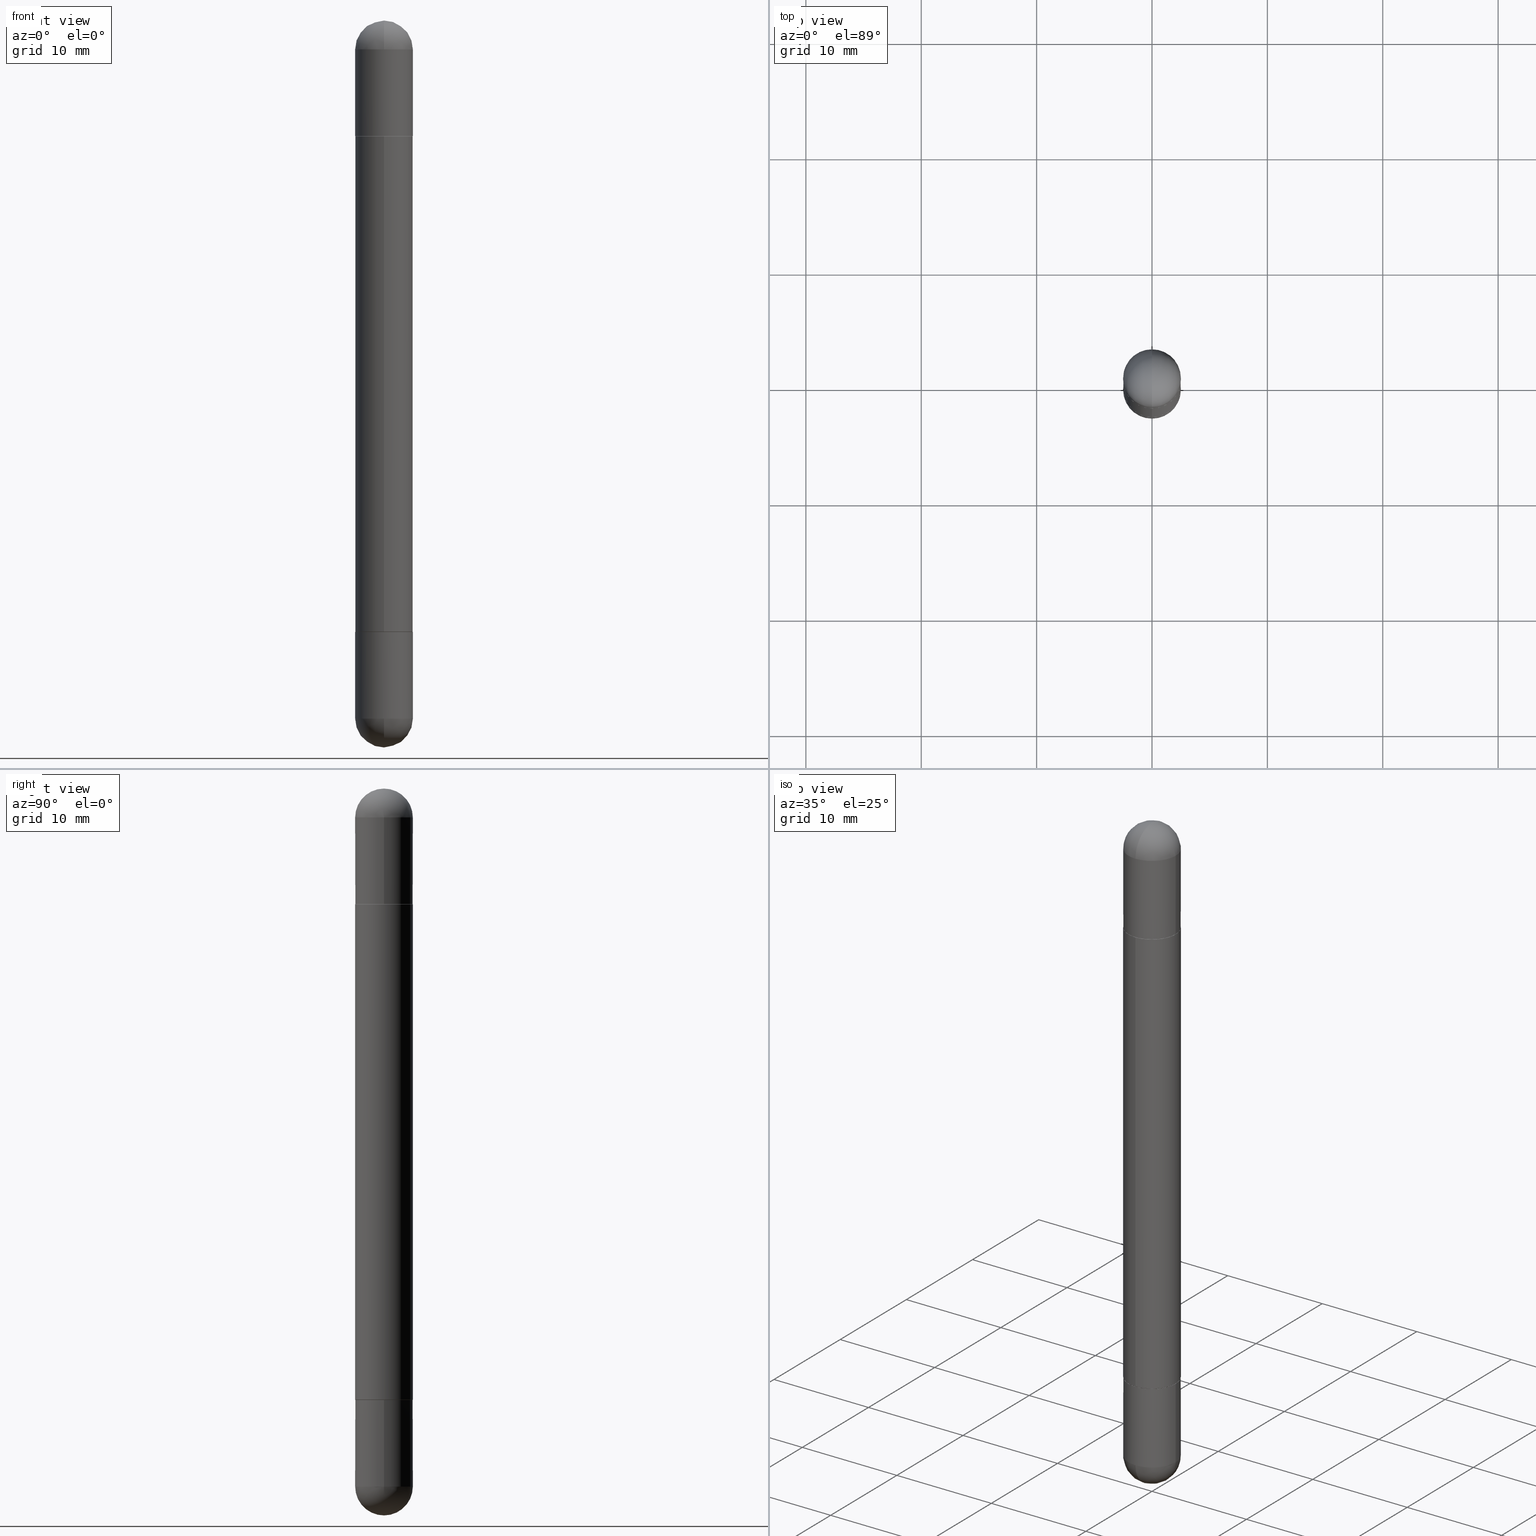
[diagram: canonical four-view strip — front | top / right | iso, engineering-drawing reading convention]
A machine part, canonical four-view strip (front | top / right | iso — engineering-drawing reading convention). The complete STEP part file that produces these views, byte-faithful:
ISO-10303-21;
HEADER;
FILE_DESCRIPTION (( 'STEP AP203' ),
    '1' );
FILE_NAME ('48976.STEP',
    '2024-03-01T12:48:17',
    ( '' ),
    ( '' ),
    'SwSTEP 2.0',
    'SolidWorks 2023',
    '' );
FILE_SCHEMA (( 'CONFIG_CONTROL_DESIGN' ));
ENDSEC;

DATA;
#1 = COORDINATED_UNIVERSAL_TIME_OFFSET ( 5, 0, .BEHIND. ) ;
#2 = VERTEX_POINT ( 'NONE', #238 ) ;
#3 = DIRECTION ( 'NONE',  ( -6.982962677686266711E-15, -1.000000000000000000, -3.504166230970065993E-15 ) ) ;
#4 = AXIS2_PLACEMENT_3D ( 'NONE', #340, #654, #462 ) ;
#5 = ORIENTED_EDGE ( 'NONE', *, *, #679, .F. ) ;
#6 = CIRCLE ( 'NONE', #464, 0.09744999999999999496 ) ;
#7 = AXIS2_PLACEMENT_3D ( 'NONE', #194, #136, #616 ) ;
#8 = ADVANCED_FACE ( 'NONE', ( #484 ), #189, .F. ) ;
#9 = APPROVAL_ROLE ( '' ) ;
#10 = EDGE_LOOP ( 'NONE', ( #688, #620, #334, #36 ) ) ;
#11 = CARTESIAN_POINT ( 'NONE',  ( -6.874726756181635521E-16, -0.09845000000000754536, -0.3947000000000003839 ) ) ;
#12 = APPROVAL_STATUS ( 'not_yet_approved' ) ;
#13 = APPROVAL ( #12, 'UNSPECIFIED' ) ;
#14 = LINE ( 'NONE', #29, #568 ) ;
#15 = EDGE_LOOP ( 'NONE', ( #103, #213 ) ) ;
#16 = CARTESIAN_POINT ( 'NONE',  ( 5.824739876012068780E-29, -8.316184826923546689E-15, -2.381850000000000467 ) ) ;
#17 = CALENDAR_DATE ( 2024, 1, 3 ) ;
#18 = AXIS2_PLACEMENT_3D ( 'NONE', #71, #106, #781 ) ;
#19 = VECTOR ( 'NONE', #160, 39.37007874015748143 ) ;
#20 = ORIENTED_EDGE ( 'NONE', *, *, #224, .F. ) ;
#21 = AXIS2_PLACEMENT_3D ( 'NONE', #577, #496, #346 ) ;
#22 = LOCAL_TIME ( 7, 48, 17.00000000000000000, #263 ) ;
#23 = FACE_OUTER_BOUND ( 'NONE', #15, .T. ) ;
#24 = CARTESIAN_POINT ( 'NONE',  ( -0.09844999999999999585, -7.101225570921008942E-15, -2.086600000000000232 ) ) ;
#25 = VERTEX_POINT ( 'NONE', #425 ) ;
#26 = EDGE_CURVE ( 'NONE', #492, #576, #371, .T. ) ;
#27 = DIRECTION ( 'NONE',  ( -2.445468806185136597E-29, 3.491481338843145583E-15, -1.000000000000000000 ) ) ;
#28 = ORIENTED_EDGE ( 'NONE', *, *, #67, .T. ) ;
#29 = CARTESIAN_POINT ( 'NONE',  ( -0.09845000000000000973, 6.754160278806074041E-16, -2.480300000000000171 ) ) ;
#30 = DIRECTION ( 'NONE',  ( -2.445773315156716163E-29, 3.491045264664268947E-15, 1.000000000000000000 ) ) ;
#31 = AXIS2_PLACEMENT_3D ( 'NONE', #707, #215, #168 ) ;
#32 = DIRECTION ( 'NONE',  ( 1.000000000000000000, -6.982962677686273810E-15, 0.000000000000000000 ) ) ;
#33 = AXIS2_PLACEMENT_3D ( 'NONE', #298, #801, #35 ) ;
#34 = ADVANCED_FACE ( 'NONE', ( #126 ), #347, .T. ) ;
#35 = DIRECTION ( 'NONE',  ( -1.000000000000000000, 6.982962677686265922E-15, 4.876176775795935793E-29 ) ) ;
#36 = ORIENTED_EDGE ( 'NONE', *, *, #662, .F. ) ;
#37 = CARTESIAN_POINT ( 'NONE',  ( -0.09845000000000000973, -7.125338866396221621E-15, -0.09844999999999987095 ) ) ;
#38 = ADVANCED_FACE ( 'NONE', ( #228 ), #729, .T. ) ;
#39 = CARTESIAN_POINT ( 'NONE',  ( -6.804897129404755657E-16, -0.09745000000000728080, -2.086600000000000232 ) ) ;
#40 = CARTESIAN_POINT ( 'NONE',  ( 3.033125776791602118E-29, -4.329419784973394178E-15, -1.240150000000000086 ) ) ;
#41 = DIRECTION ( 'NONE',  ( -2.445773315156716163E-29, 3.491045264664269341E-15, -1.000000000000000000 ) ) ;
#42 = EDGE_CURVE ( 'NONE', #630, #808, #603, .T. ) ;
#43 = ORIENTED_EDGE ( 'NONE', *, *, #223, .T. ) ;
#44 = DIRECTION ( 'NONE',  ( 2.445468806185136597E-29, -3.491481338843145583E-15, 1.000000000000000000 ) ) ;
#45 = DIRECTION ( 'NONE',  ( -2.445773315156716163E-29, 3.491045264664269341E-15, -1.000000000000000000 ) ) ;
#46 = ORIENTED_EDGE ( 'NONE', *, *, #254, .F. ) ;
#47 = CARTESIAN_POINT ( 'NONE',  ( 5.102715210985907397E-29, -7.285324961630108994E-15, -0.3936999999999999389 ) ) ;
#48 = CIRCLE ( 'NONE', #715, 0.09844999999999999585 ) ;
#49 = ORIENTED_EDGE ( 'NONE', *, *, #134, .F. ) ;
#50 = DIRECTION ( 'NONE',  ( -6.982962677686265922E-15, -1.000000000000000000, -3.468572871589965081E-15 ) ) ;
#51 = DIRECTION ( 'NONE',  ( -2.445773315156716163E-29, 3.491045264664269341E-15, 1.000000000000000000 ) ) ;
#52 = ORIENTED_EDGE ( 'NONE', *, *, #628, .T. ) ;
#53 = EDGE_CURVE ( 'NONE', #264, #808, #276, .T. ) ;
#54 = DIRECTION ( 'NONE',  ( -6.982962677686266711E-15, -1.000000000000000000, -3.504166230970065993E-15 ) ) ;
#55 = DIRECTION ( 'NONE',  ( 4.851104656541418659E-15, 0.7071067811866162955, -0.7071067811864787389 ) ) ;
#56 = FACE_OUTER_BOUND ( 'NONE', #191, .T. ) ;
#57 = DIRECTION ( 'NONE',  ( -2.445773315156716163E-29, 3.491045264664268947E-15, -1.000000000000000000 ) ) ;
#58 = CARTESIAN_POINT ( 'NONE',  ( 5.493620098098182533E-29, -8.790367195063598563E-15, -2.381850000000000467 ) ) ;
#59 = CARTESIAN_POINT ( 'NONE',  ( 5.738586058125595532E-29, -9.128075209003904434E-15, -2.480300000000001059 ) ) ;
#60 = CARTESIAN_POINT ( 'NONE',  ( 5.103350599406005288E-29, -7.284415049248465084E-15, -0.3936999999999999389 ) ) ;
#61 = CARTESIAN_POINT ( 'NONE',  ( 0.09844999999999999585, -7.972797637248321554E-15, -2.086600000000000232 ) ) ;
#62 = AXIS2_PLACEMENT_3D ( 'NONE', #548, #240, #732 ) ;
#63 = AXIS2_PLACEMENT_3D ( 'NONE', #432, #302, #741 ) ;
#64 = CARTESIAN_POINT ( 'NONE',  ( 5.493620098098182533E-29, -8.790367195063598563E-15, -0.09844999999999987095 ) ) ;
#65 = EDGE_LOOP ( 'NONE', ( #239, #758 ) ) ;
#66 = SECURITY_CLASSIFICATION ( '', '', #769 ) ;
#67 = EDGE_CURVE ( 'NONE', #97, #2, #770, .T. ) ;
#68 = ORIENTED_EDGE ( 'NONE', *, *, #164, .T. ) ;
#69 = DIRECTION ( 'NONE',  ( -2.445468806185136877E-29, 3.491481338843145188E-15, 1.000000000000000000 ) ) ;
#70 = ORIENTED_EDGE ( 'NONE', *, *, #251, .F. ) ;
#71 = CARTESIAN_POINT ( 'NONE',  ( 5.824739876012068780E-29, -8.316184826923546689E-15, -2.381850000000000467 ) ) ;
#72 = EDGE_LOOP ( 'NONE', ( #229, #318, #52, #167 ) ) ;
#73 = FACE_OUTER_BOUND ( 'NONE', #313, .T. ) ;
#74 = EDGE_CURVE ( 'NONE', #494, #322, #173, .T. ) ;
#75 = AXIS2_PLACEMENT_3D ( 'NONE', #512, #771, #518 ) ;
#76 = APPROVAL_ROLE ( '' ) ;
#77 = VERTEX_POINT ( 'NONE', #536 ) ;
#78 = AXIS2_PLACEMENT_3D ( 'NONE', #803, #118, #50 ) ;
#79 = EDGE_LOOP ( 'NONE', ( #687, #436 ) ) ;
#80 = ADVANCED_FACE ( 'NONE', ( #470 ), #724, .T. ) ;
#81 = PERSON_AND_ORGANIZATION ( #752, #600 ) ;
#82 = ADVANCED_FACE ( 'NONE', ( #476 ), #417, .T. ) ;
#83 = ORIENTED_EDGE ( 'NONE', *, *, #445, .T. ) ;
#84 = DIRECTION ( 'NONE',  ( 6.860497997771531562E-15, 1.000000000000000000, 0.000000000000000000 ) ) ;
#85 = PERSON_AND_ORGANIZATION_ROLE ( 'classification_officer' ) ;
#86 = LINE ( 'NONE', #390, #814 ) ;
#87 = VERTEX_POINT ( 'NONE', #324 ) ;
#88 = ADVANCED_FACE ( 'NONE', ( #73 ), #200, .T. ) ;
#89 = PERSON_AND_ORGANIZATION_ROLE ( 'design_owner' ) ;
#90 = CARTESIAN_POINT ( 'NONE',  ( 5.493620098098182533E-29, -8.790367195063598563E-15, -2.381850000000000467 ) ) ;
#91 = AXIS2_PLACEMENT_3D ( 'NONE', #314, #424, #681 ) ;
#92 = ORIENTED_EDGE ( 'NONE', *, *, #268, .T. ) ;
#93 = AXIS2_PLACEMENT_3D ( 'NONE', #304, #549, #187 ) ;
#94 = CYLINDRICAL_SURFACE ( 'NONE', #152, 0.09845000000000000973 ) ;
#95 = ORIENTED_EDGE ( 'NONE', *, *, #636, .F. ) ;
#96 = DIMENSIONAL_EXPONENTS ( 1.000000000000000000, 0.000000000000000000, 0.000000000000000000, 0.000000000000000000, 0.000000000000000000, 0.000000000000000000, 0.000000000000000000 ) ;
#97 = VERTEX_POINT ( 'NONE', #505 ) ;
#98 = EDGE_CURVE ( 'NONE', #322, #574, #733, .T. ) ;
#99 = DIRECTION ( 'NONE',  ( 1.000000000000000000, -6.982962677686266711E-15, 0.000000000000000000 ) ) ;
#100 = EDGE_CURVE ( 'NONE', #328, #748, #454, .T. ) ;
#101 = CARTESIAN_POINT ( 'NONE',  ( 6.754160278806080944E-16, 0.09845000000000013463, -2.480299999999999727 ) ) ;
#102 = CARTESIAN_POINT ( 'NONE',  ( 0.09844999999999999585, -7.972797637248321554E-15, -0.3936999999999999389 ) ) ;
#103 = ORIENTED_EDGE ( 'NONE', *, *, #268, .F. ) ;
#104 = AXIS2_PLACEMENT_3D ( 'NONE', #90, #587, #219 ) ;
#105 = CIRCLE ( 'NONE', #610, 0.09845000000000000973 ) ;
#106 = DIRECTION ( 'NONE',  ( -2.445468806185136597E-29, 3.491481338843145583E-15, 1.000000000000000000 ) ) ;
#107 = AXIS2_PLACEMENT_3D ( 'NONE', #146, #443, #278 ) ;
#108 = FACE_OUTER_BOUND ( 'NONE', #10, .T. ) ;
#109 = ORIENTED_EDGE ( 'NONE', *, *, #406, .T. ) ;
#110 = APPLICATION_CONTEXT ( 'configuration controlled 3d designs of mechanical parts and assemblies' ) ;
#111 = EDGE_LOOP ( 'NONE', ( #792, #601, #565, #46, #294 ) ) ;
#112 = DIRECTION ( 'NONE',  ( -2.445468806185136877E-29, 3.491481338843145188E-15, -1.000000000000000000 ) ) ;
#113 = CARTESIAN_POINT ( 'NONE',  ( 5.103350599406005288E-29, -7.284415049248465084E-15, -2.086600000000000232 ) ) ;
#114 = VERTEX_POINT ( 'NONE', #275 ) ;
#115 = ORIENTED_EDGE ( 'NONE', *, *, #720, .T. ) ;
#116 = DIRECTION ( 'NONE',  ( -2.445468806185136877E-29, 3.491481338843145188E-15, 1.000000000000000000 ) ) ;
#117 = APPROVAL ( #579, 'UNSPECIFIED' ) ;
#118 = DIRECTION ( 'NONE',  ( 2.445773315156716163E-29, -3.491045264664269341E-15, 1.000000000000000000 ) ) ;
#119 = CYLINDRICAL_SURFACE ( 'NONE', #122, 0.09845000000000000973 ) ;
#120 = CIRCLE ( 'NONE', #31, 0.09844999999999999585 ) ;
#121 = CIRCLE ( 'NONE', #787, 0.09844999999999999585 ) ;
#122 = AXIS2_PLACEMENT_3D ( 'NONE', #375, #379, #622 ) ;
#123 = CARTESIAN_POINT ( 'NONE',  ( 5.824739876012068780E-29, -8.316184826923546689E-15, -0.09844999999999987095 ) ) ;
#124 = LOCAL_TIME ( 7, 48, 17.00000000000000000, #582 ) ;
#125 = DIRECTION ( 'NONE',  ( -2.445773315156716163E-29, 3.491045264664269341E-15, -1.000000000000000000 ) ) ;
#126 = FACE_OUTER_BOUND ( 'NONE', #358, .T. ) ;
#127 = DIRECTION ( 'NONE',  ( 1.000000000000000000, -6.982962677686266711E-15, 0.000000000000000000 ) ) ;
#128 = DIRECTION ( 'NONE',  ( 2.445773315156716163E-29, -3.491045264664269341E-15, 1.000000000000000000 ) ) ;
#129 = CARTESIAN_POINT ( 'NONE',  ( 5.824739876012068780E-29, -8.316184826923546689E-15, -2.381850000000000467 ) ) ;
#130 = EDGE_LOOP ( 'NONE', ( #653, #802, #754, #558 ) ) ;
#131 = CARTESIAN_POINT ( 'NONE',  ( -6.995293233557624958E-16, -0.09845000000000865559, -2.381850000000000023 ) ) ;
#132 = EDGE_LOOP ( 'NONE', ( #726, #197, #281, #68 ) ) ;
#133 = DIRECTION ( 'NONE',  ( 2.445468806185136597E-29, -3.491481338843145583E-15, 1.000000000000000000 ) ) ;
#134 = EDGE_CURVE ( 'NONE', #25, #139, #262, .T. ) ;
#135 = ADVANCED_FACE ( 'NONE', ( #591 ), #698, .F. ) ;
#136 = DIRECTION ( 'NONE',  ( -1.000000000000000000, 6.982962677686265922E-15, 4.883557194083112340E-29 ) ) ;
#137 = EDGE_LOOP ( 'NONE', ( #354, #349, #528, #339, #738 ) ) ;
#138 = EDGE_CURVE ( 'NONE', #25, #320, #763, .T. ) ;
#139 = VERTEX_POINT ( 'NONE', #11 ) ;
#140 = AXIS2_PLACEMENT_3D ( 'NONE', #270, #511, #755 ) ;
#141 = PRODUCT_DEFINITION ( 'UNKNOWN', '', #212, #461 ) ;
#142 = AXIS2_PLACEMENT_3D ( 'NONE', #58, #188, #805 ) ;
#143 =( LENGTH_UNIT ( ) NAMED_UNIT ( * ) SI_UNIT ( $, .METRE. ) );
#144 = FACE_OUTER_BOUND ( 'NONE', #137, .T. ) ;
#145 = ORIENTED_EDGE ( 'NONE', *, *, #100, .F. ) ;
#146 = CARTESIAN_POINT ( 'NONE',  ( 0.000000000000000000, 0.000000000000000000, 0.000000000000000000 ) ) ;
#147 = EDGE_LOOP ( 'NONE', ( #513, #222, #474, #246, #790 ) ) ;
#148 = ADVANCED_FACE ( 'NONE', ( #516 ), #595, .T. ) ;
#149 = DIRECTION ( 'NONE',  ( 2.445773315156716163E-29, -3.491045264664269341E-15, 1.000000000000000000 ) ) ;
#150 = CARTESIAN_POINT ( 'NONE',  ( 5.103350599406005288E-29, -7.284415049248465084E-15, -0.3936999999999999389 ) ) ;
#151 = AXIS2_PLACEMENT_3D ( 'NONE', #661, #30, #617 ) ;
#152 = AXIS2_PLACEMENT_3D ( 'NONE', #217, #718, #658 ) ;
#153 = PERSON_AND_ORGANIZATION ( #752, #600 ) ;
#154 = CIRCLE ( 'NONE', #315, 0.09845000000000024565 ) ;
#155 = CC_DESIGN_APPROVAL ( #13, ( #212 ) ) ;
#156 = ORIENTED_EDGE ( 'NONE', *, *, #428, .T. ) ;
#157 = PERSON_AND_ORGANIZATION ( #752, #600 ) ;
#158 = PERSON_AND_ORGANIZATION ( #752, #600 ) ;
#159 = FACE_OUTER_BOUND ( 'NONE', #405, .T. ) ;
#160 = DIRECTION ( 'NONE',  ( -2.445773315156716163E-29, 3.491045264664268947E-15, -1.000000000000000000 ) ) ;
#161 = AXIS2_PLACEMENT_3D ( 'NONE', #40, #807, #745 ) ;
#162 = ORIENTED_EDGE ( 'NONE', *, *, #274, .T. ) ;
#163 = CONICAL_SURFACE ( 'NONE', #261, 0.09744999999999999496, 0.7853981633975420928 ) ;
#164 = EDGE_CURVE ( 'NONE', #486, #97, #556, .T. ) ;
#165 = PLANE ( 'NONE',  #690 ) ;
#166 = DIRECTION ( 'NONE',  ( -1.000000000000000000, 6.982962677686265922E-15, 4.876176775795935793E-29 ) ) ;
#167 = ORIENTED_EDGE ( 'NONE', *, *, #657, .T. ) ;
#168 = DIRECTION ( 'NONE',  ( 1.000000000000000000, -6.982962677686265922E-15, 0.000000000000000000 ) ) ;
#169 = CC_DESIGN_PERSON_AND_ORGANIZATION_ASSIGNMENT ( #699, #633, ( #212 ) ) ;
#170 = CARTESIAN_POINT ( 'NONE',  ( 5.738586058125595532E-29, -9.128075209003904434E-15, 3.073328992872296367E-16 ) ) ;
#171 = FACE_OUTER_BOUND ( 'NONE', #593, .T. ) ;
#172 = ORIENTED_EDGE ( 'NONE', *, *, #134, .T. ) ;
#173 = CIRCLE ( 'NONE', #18, 0.09845000000000000973 ) ;
#174 = CARTESIAN_POINT ( 'NONE',  ( -6.874726756181635521E-16, -0.09845000000000754536, -0.3947000000000003839 ) ) ;
#175 = VECTOR ( 'NONE', #423, 39.37007874015748143 ) ;
#176 = CARTESIAN_POINT ( 'NONE',  ( 0.000000000000000000, 0.000000000000000000, -2.480300000000000171 ) ) ;
#177 = DIRECTION ( 'NONE',  ( 1.000000000000000000, -6.982962677686273810E-15, 0.000000000000000000 ) ) ;
#178 = CIRCLE ( 'NONE', #301, 0.09744999999999999496 ) ;
#179 = CARTESIAN_POINT ( 'NONE',  ( 5.824739876012068780E-29, -8.316184826923546689E-15, -0.09844999999999987095 ) ) ;
#180 = EDGE_CURVE ( 'NONE', #77, #492, #391, .T. ) ;
#181 = ORIENTED_EDGE ( 'NONE', *, *, #499, .F. ) ;
#182 = DIRECTION ( 'NONE',  ( -6.982962677686265922E-15, -1.000000000000000000, -3.491045264664268947E-15 ) ) ;
#183 = EDGE_CURVE ( 'NONE', #413, #299, #14, .T. ) ;
#184 = DIRECTION ( 'NONE',  ( -6.982962677686265922E-15, -1.000000000000000000, -3.468572871589965081E-15 ) ) ;
#185 = EDGE_LOOP ( 'NONE', ( #204, #664 ) ) ;
#186 = FACE_OUTER_BOUND ( 'NONE', #111, .T. ) ;
#187 = DIRECTION ( 'NONE',  ( -1.000000000000000000, 0.000000000000000000, 0.000000000000000000 ) ) ;
#188 = DIRECTION ( 'NONE',  ( -1.000000000000000000, 6.982962677686265922E-15, -4.883557194083112901E-29 ) ) ;
#189 = PLANE ( 'NONE',  #151 ) ;
#190 = CIRCLE ( 'NONE', #540, 0.09844999999999999585 ) ;
#191 = EDGE_LOOP ( 'NONE', ( #611, #162, #583, #156, #376 ) ) ;
#192 = DIRECTION ( 'NONE',  ( 1.000000000000000000, -6.982962677686273810E-15, 0.000000000000000000 ) ) ;
#193 = CARTESIAN_POINT ( 'NONE',  ( 6.719857788817732685E-16, 0.09744999999999269524, -0.3936999999999996058 ) ) ;
#194 = CARTESIAN_POINT ( 'NONE',  ( 5.493620098098182533E-29, -8.790367195063598563E-15, -0.09844999999999987095 ) ) ;
#195 = ORIENTED_EDGE ( 'NONE', *, *, #180, .T. ) ;
#196 = CARTESIAN_POINT ( 'NONE',  ( -6.874726756181636507E-16, -0.09845000000000751761, -2.085599999999999898 ) ) ;
#197 = ORIENTED_EDGE ( 'NONE', *, *, #532, .T. ) ;
#198 = CARTESIAN_POINT ( 'NONE',  ( 5.738586058125595532E-29, -9.128075209003904434E-15, 3.073328992872296367E-16 ) ) ;
#199 = CLOSED_SHELL ( 'NONE', ( #507, #386, #618, #135, #88, #410 ) ) ;
#200 = CONICAL_SURFACE ( 'NONE', #667, 0.09744999999999999496, 0.7853981633975420928 ) ;
#201 = AXIS2_PLACEMENT_3D ( 'NONE', #297, #45, #673 ) ;
#202 = APPROVAL_DATE_TIME ( #762, #475 ) ;
#203 = ORIENTED_EDGE ( 'NONE', *, *, #53, .T. ) ;
#204 = ORIENTED_EDGE ( 'NONE', *, *, #138, .T. ) ;
#205 = CARTESIAN_POINT ( 'NONE',  ( 6.754160278806600606E-16, 0.09844999999999295981, -0.3946999999999996622 ) ) ;
#206 = PERSON_AND_ORGANIZATION ( #752, #600 ) ;
#207 = ADVANCED_FACE ( 'NONE', ( #271 ), #338, .T. ) ;
#208 = DIRECTION ( 'NONE',  ( -2.445773315156716163E-29, 3.491045264664268947E-15, -1.000000000000000000 ) ) ;
#209 = ORIENTED_EDGE ( 'NONE', *, *, #737, .T. ) ;
#210 = ORIENTED_EDGE ( 'NONE', *, *, #753, .T. ) ;
#211 = AXIS2_PLACEMENT_3D ( 'NONE', #676, #307, #739 ) ;
#212 = PRODUCT_DEFINITION_FORMATION_WITH_SPECIFIED_SOURCE ( 'ANY', '', #561, .NOT_KNOWN. ) ;
#213 = ORIENTED_EDGE ( 'NONE', *, *, #296, .F. ) ;
#214 = CALENDAR_DATE ( 2024, 1, 3 ) ;
#215 = DIRECTION ( 'NONE',  ( -2.445468806185136597E-29, 3.491481338843145583E-15, 1.000000000000000000 ) ) ;
#216 = CARTESIAN_POINT ( 'NONE',  ( 5.493620098098182533E-29, -8.790367195063598563E-15, -0.09844999999999987095 ) ) ;
#217 = CARTESIAN_POINT ( 'NONE',  ( 0.000000000000000000, 0.000000000000000000, -2.480300000000000171 ) ) ;
#218 = ADVANCED_FACE ( 'NONE', ( #159 ), #652, .T. ) ;
#219 = DIRECTION ( 'NONE',  ( 6.982962677686265922E-15, 1.000000000000000000, -2.774858297271973643E-15 ) ) ;
#220 = VERTEX_POINT ( 'NONE', #24 ) ;
#221 = AXIS2_PLACEMENT_3D ( 'NONE', #520, #149, #3 ) ;
#222 = ORIENTED_EDGE ( 'NONE', *, *, #635, .T. ) ;
#223 = EDGE_CURVE ( 'NONE', #576, #264, #460, .T. ) ;
#224 = EDGE_CURVE ( 'NONE', #139, #440, #585, .T. ) ;
#225 = ORIENTED_EDGE ( 'NONE', *, *, #53, .F. ) ;
#226 = MANIFOLD_SOLID_BREP ( 'Combine1', #312 ) ;
#227 = DIRECTION ( 'NONE',  ( 2.445468806185136597E-29, -3.491481338843145583E-15, 1.000000000000000000 ) ) ;
#228 = FACE_OUTER_BOUND ( 'NONE', #147, .T. ) ;
#229 = ORIENTED_EDGE ( 'NONE', *, *, #753, .F. ) ;
#230 = CARTESIAN_POINT ( 'NONE',  ( 6.754160278806588773E-16, 0.09844999999999579088, -1.240150000000000086 ) ) ;
#231 = DIRECTION ( 'NONE',  ( 6.982962677686265922E-15, 1.000000000000000000, 3.468572871589967054E-15 ) ) ;
#232 = ORIENTED_EDGE ( 'NONE', *, *, #672, .F. ) ;
#233 = DIRECTION ( 'NONE',  ( 1.000000000000000000, -6.982962677686273810E-15, 0.000000000000000000 ) ) ;
#234 = CARTESIAN_POINT ( 'NONE',  ( 5.103350599406005288E-29, -7.284415049248465084E-15, -0.3936999999999999389 ) ) ;
#235 = EDGE_LOOP ( 'NONE', ( #70, #20, #533, #785 ) ) ;
#236 = DIRECTION ( 'NONE',  ( 1.000000000000000000, -6.982962677686273810E-15, 0.000000000000000000 ) ) ;
#237 = DIRECTION ( 'NONE',  ( 2.445468806185136597E-29, -3.491481338843145583E-15, 1.000000000000000000 ) ) ;
#238 = CARTESIAN_POINT ( 'NONE',  ( -0.09845000000000000973, -7.125338866396221621E-15, -0.09844999999999987095 ) ) ;
#239 = ORIENTED_EDGE ( 'NONE', *, *, #360, .T. ) ;
#240 = DIRECTION ( 'NONE',  ( -2.445468806185136597E-29, 3.491481338843145583E-15, 1.000000000000000000 ) ) ;
#241 = ADVANCED_FACE ( 'NONE', ( #284 ), #94, .T. ) ;
#242 = DIRECTION ( 'NONE',  ( 2.445468806185136597E-29, -3.491481338843145583E-15, 1.000000000000000000 ) ) ;
#243 = CARTESIAN_POINT ( 'NONE',  ( 5.824739876012068780E-29, -8.316184826923546689E-15, -0.09844999999999987095 ) ) ;
#244 = AXIS2_PLACEMENT_3D ( 'NONE', #414, #291, #743 ) ;
#245 = ADVANCED_FACE ( 'NONE', ( #783 ), #165, .F. ) ;
#246 = ORIENTED_EDGE ( 'NONE', *, *, #522, .F. ) ;
#247 = PLANE ( 'NONE',  #260 ) ;
#248 = AXIS2_PLACEMENT_3D ( 'NONE', #350, #597, #32 ) ;
#249 = DIRECTION ( 'NONE',  ( -2.445773315156716163E-29, 3.491045264664269341E-15, 1.000000000000000000 ) ) ;
#250 = ORIENTED_EDGE ( 'NONE', *, *, #223, .F. ) ;
#251 = EDGE_CURVE ( 'NONE', #440, #361, #407, .T. ) ;
#252 = ORIENTED_EDGE ( 'NONE', *, *, #98, .F. ) ;
#253 = DIRECTION ( 'NONE',  ( 1.000000000000000000, -6.982962677686265922E-15, -4.883557194083112901E-29 ) ) ;
#254 = EDGE_CURVE ( 'NONE', #795, #670, #256, .T. ) ;
#255 = APPROVAL_DATE_TIME ( #395, #117 ) ;
#256 = LINE ( 'NONE', #265, #524 ) ;
#257 = ORIENTED_EDGE ( 'NONE', *, *, #709, .T. ) ;
#258 = DIRECTION ( 'NONE',  ( -0.000000000000000000, -0.000000000000000000, -1.000000000000000000 ) ) ;
#259 = DIRECTION ( 'NONE',  ( -2.445773315156716163E-29, 3.491045264664269341E-15, -1.000000000000000000 ) ) ;
#260 = AXIS2_PLACEMENT_3D ( 'NONE', #234, #57, #182 ) ;
#261 = AXIS2_PLACEMENT_3D ( 'NONE', #370, #125, #54 ) ;
#262 = LINE ( 'NONE', #450, #300 ) ;
#263 = COORDINATED_UNIVERSAL_TIME_OFFSET ( 5, 0, .BEHIND. ) ;
#264 = VERTEX_POINT ( 'NONE', #696 ) ;
#265 = CARTESIAN_POINT ( 'NONE',  ( 0.09845000000000000973, -6.874726756182130531E-16, -2.480300000000000171 ) ) ;
#266 = ADVANCED_BREP_SHAPE_REPRESENTATION ( '48976', ( #766, #491, #768, #780, #226, #107 ), #383 ) ;
#267 = ADVANCED_FACE ( 'NONE', ( #144 ), #337, .T. ) ;
#268 = EDGE_CURVE ( 'NONE', #670, #299, #489, .T. ) ;
#269 = DATE_AND_TIME ( #457, #124 ) ;
#270 = CARTESIAN_POINT ( 'NONE',  ( 5.102715210985907397E-29, -7.285324961630108994E-15, -0.3936999999999999389 ) ) ;
#271 = FACE_OUTER_BOUND ( 'NONE', #132, .T. ) ;
#272 = ORIENTED_EDGE ( 'NONE', *, *, #164, .F. ) ;
#273 = FACE_OUTER_BOUND ( 'NONE', #730, .T. ) ;
#274 = EDGE_CURVE ( 'NONE', #574, #675, #411, .T. ) ;
#275 = CARTESIAN_POINT ( 'NONE',  ( 6.959766096770698684E-16, 0.09744999999999269524, -2.086600000000000676 ) ) ;
#276 = CIRCLE ( 'NONE', #666, 0.09845000000000024565 ) ;
#277 = AXIS2_PLACEMENT_3D ( 'NONE', #396, #467, #348 ) ;
#278 = DIRECTION ( 'NONE',  ( 1.000000000000000000, 0.000000000000000000, 0.000000000000000000 ) ) ;
#279 = CIRCLE ( 'NONE', #599, 0.09845000000000013463 ) ;
#280 = DIRECTION ( 'NONE',  ( -2.445468806185136877E-29, 3.491481338843145188E-15, -1.000000000000000000 ) ) ;
#281 = ORIENTED_EDGE ( 'NONE', *, *, #545, .T. ) ;
#282 = EDGE_CURVE ( 'NONE', #472, #97, #439, .T. ) ;
#283 = CARTESIAN_POINT ( 'NONE',  ( 5.103350599406005288E-29, -7.284415049248465084E-15, -0.3936999999999999389 ) ) ;
#284 = FACE_OUTER_BOUND ( 'NONE', #400, .T. ) ;
#285 = UNCERTAINTY_MEASURE_WITH_UNIT (LENGTH_MEASURE( 1.000000000000000082E-05 ), #385, 'distance_accuracy_value', 'NONE');
#286 = CC_DESIGN_PERSON_AND_ORGANIZATION_ASSIGNMENT ( #81, #85, ( #66 ) ) ;
#287 = AXIS2_PLACEMENT_3D ( 'NONE', #531, #727, #177 ) ;
#288 = EDGE_LOOP ( 'NONE', ( #523, #378, #765, #252 ) ) ;
#289 = CARTESIAN_POINT ( 'NONE',  ( 0.09845000000000000973, -6.874726756182130531E-16, -2.480300000000000171 ) ) ;
#290 = ORIENTED_EDGE ( 'NONE', *, *, #589, .F. ) ;
#291 = DIRECTION ( 'NONE',  ( 1.000000000000000000, -6.982962677686265922E-15, 4.883557194083112340E-29 ) ) ;
#292 = DIRECTION ( 'NONE',  ( -4.937700262165011104E-15, -0.7071067811866114106, 0.7071067811864836239 ) ) ;
#293 = DIRECTION ( 'NONE',  ( -2.445468806185136877E-29, 3.491481338843145188E-15, -1.000000000000000000 ) ) ;
#294 = ORIENTED_EDGE ( 'NONE', *, *, #628, .F. ) ;
#295 = DIRECTION ( 'NONE',  ( -6.982962677686265922E-15, -1.000000000000000000, 2.774858297271972065E-15 ) ) ;
#296 = EDGE_CURVE ( 'NONE', #299, #670, #190, .T. ) ;
#297 = CARTESIAN_POINT ( 'NONE',  ( 5.103350599406005288E-29, -7.284415049248465084E-15, -0.3936999999999999389 ) ) ;
#298 = CARTESIAN_POINT ( 'NONE',  ( 6.874726756182639346E-16, 0.09844999999999271001, -0.3936999999999996613 ) ) ;
#299 = VERTEX_POINT ( 'NONE', #477 ) ;
#300 = VECTOR ( 'NONE', #508, 39.37007874015748143 ) ;
#301 = AXIS2_PLACEMENT_3D ( 'NONE', #631, #249, #564 ) ;
#302 = DIRECTION ( 'NONE',  ( 2.438088387897960049E-29, -3.491481338843145188E-15, -1.000000000000000000 ) ) ;
#303 = VERTEX_POINT ( 'NONE', #543 ) ;
#304 = CARTESIAN_POINT ( 'NONE',  ( 0.000000000000000000, 0.000000000000000000, -1.240150000000000086 ) ) ;
#305 = EDGE_CURVE ( 'NONE', #327, #220, #639, .T. ) ;
#306 = DIRECTION ( 'NONE',  ( 1.000000000000000000, -6.982962677686273810E-15, 0.000000000000000000 ) ) ;
#307 = DIRECTION ( 'NONE',  ( -1.000000000000000000, 6.982962677686265922E-15, 4.883557194083112340E-29 ) ) ;
#308 = LINE ( 'NONE', #550, #569 ) ;
#309 = PLANE ( 'NONE',  #93 ) ;
#310 = ADVANCED_FACE ( 'NONE', ( #485 ), #247, .F. ) ;
#311 = DIRECTION ( 'NONE',  ( 1.000000000000000000, -6.982962677686265922E-15, 0.000000000000000000 ) ) ;
#312 = CLOSED_SHELL ( 'NONE', ( #731, #148, #521, #310, #740, #82, #498, #8 ) ) ;
#313 = EDGE_LOOP ( 'NONE', ( #95, #779, #172, #387 ) ) ;
#314 = CARTESIAN_POINT ( 'NONE',  ( 5.824739876012068780E-29, -8.316184826923546689E-15, -2.381850000000000467 ) ) ;
#315 = AXIS2_PLACEMENT_3D ( 'NONE', #708, #341, #584 ) ;
#316 = LOCAL_TIME ( 7, 48, 17.00000000000000000, #1 ) ;
#317 = CARTESIAN_POINT ( 'NONE',  ( 0.09845000000000000973, -8.488227569895042768E-15, -0.09844999999999987095 ) ) ;
#318 = ORIENTED_EDGE ( 'NONE', *, *, #100, .T. ) ;
#319 = CARTESIAN_POINT ( 'NONE',  ( 0.09845000000000000973, -8.488227569895042768E-15, -0.09844999999999987095 ) ) ;
#320 = VERTEX_POINT ( 'NONE', #193 ) ;
#321 = DIRECTION ( 'NONE',  ( 6.982962677686265922E-15, 1.000000000000000000, 3.468572871589967054E-15 ) ) ;
#322 = VERTEX_POINT ( 'NONE', #431 ) ;
#323 = AXIS2_PLACEMENT_3D ( 'NONE', #392, #645, #84 ) ;
#324 = CARTESIAN_POINT ( 'NONE',  ( 6.874726756182700483E-16, 0.09844999999999154427, -0.09844999999999953788 ) ) ;
#325 = CIRCLE ( 'NONE', #429, 0.09845000000000000973 ) ;
#326 = COORDINATED_UNIVERSAL_TIME_OFFSET ( 5, 0, .BEHIND. ) ;
#327 = VERTEX_POINT ( 'NONE', #61 ) ;
#328 = VERTEX_POINT ( 'NONE', #170 ) ;
#329 = CARTESIAN_POINT ( 'NONE',  ( 3.033125776791602118E-29, -4.329419784973394178E-15, -1.240150000000000086 ) ) ;
#330 = EDGE_CURVE ( 'NONE', #675, #494, #403, .T. ) ;
#331 = DIRECTION ( 'NONE',  ( 2.445773315156716163E-29, -3.491045264664269341E-15, 1.000000000000000000 ) ) ;
#332 =( NAMED_UNIT ( * ) PLANE_ANGLE_UNIT ( ) SI_UNIT ( $, .RADIAN. ) );
#333 = CARTESIAN_POINT ( 'NONE',  ( 0.000000000000000000, 0.000000000000000000, 0.000000000000000000 ) ) ;
#334 = ORIENTED_EDGE ( 'NONE', *, *, #644, .T. ) ;
#335 = COORDINATED_UNIVERSAL_TIME_OFFSET ( 5, 0, .BEHIND. ) ;
#336 = PRODUCT_RELATED_PRODUCT_CATEGORY ( 'detail', '', ( #561 ) ) ;
#337 = CYLINDRICAL_SURFACE ( 'NONE', #772, 0.09845000000000000973 ) ;
#338 = SPHERICAL_SURFACE ( 'NONE', #75, 0.09845000000000017626 ) ;
#339 = ORIENTED_EDGE ( 'NONE', *, *, #428, .F. ) ;
#340 = CARTESIAN_POINT ( 'NONE',  ( 5.103350599406005288E-29, -7.284415049248465084E-15, -0.3936999999999999389 ) ) ;
#341 = DIRECTION ( 'NONE',  ( 2.445773315156716163E-29, -3.491045264664269341E-15, 1.000000000000000000 ) ) ;
#342 = AXIS2_PLACEMENT_3D ( 'NONE', #150, #331, #578 ) ;
#343 = PERSON_AND_ORGANIZATION ( #752, #600 ) ;
#344 = CIRCLE ( 'NONE', #627, 0.09845000000000017626 ) ;
#345 = ORIENTED_EDGE ( 'NONE', *, *, #644, .F. ) ;
#346 = DIRECTION ( 'NONE',  ( -6.982962677686265922E-15, -1.000000000000000000, 2.774858297271972065E-15 ) ) ;
#347 = CYLINDRICAL_SURFACE ( 'NONE', #553, 0.09845000000000000973 ) ;
#348 = DIRECTION ( 'NONE',  ( 1.000000000000000000, -6.982962677686273810E-15, 0.000000000000000000 ) ) ;
#349 = ORIENTED_EDGE ( 'NONE', *, *, #767, .T. ) ;
#350 = CARTESIAN_POINT ( 'NONE',  ( 5.824739876012068780E-29, -8.316184826923546689E-15, -0.09844999999999987095 ) ) ;
#351 = AXIS2_PLACEMENT_3D ( 'NONE', #648, #581, #719 ) ;
#352 = EDGE_CURVE ( 'NONE', #816, #449, #48, .T. ) ;
#353 = CONICAL_SURFACE ( 'NONE', #586, 0.09744999999999999496, 0.7853981633975420928 ) ;
#354 = ORIENTED_EDGE ( 'NONE', *, *, #98, .T. ) ;
#355 = DIRECTION ( 'NONE',  ( -2.445468806185136597E-29, 3.491481338843145583E-15, -1.000000000000000000 ) ) ;
#356 = CARTESIAN_POINT ( 'NONE',  ( 5.493620098098182533E-29, -8.790367195063598563E-15, -0.09844999999999987095 ) ) ;
#357 = DIRECTION ( 'NONE',  ( -2.445773315156716163E-29, 3.491045264664268947E-15, -1.000000000000000000 ) ) ;
#358 = EDGE_LOOP ( 'NONE', ( #680, #519, #272, #747, #115 ) ) ;
#359 = EDGE_CURVE ( 'NONE', #114, #264, #804, .T. ) ;
#360 = EDGE_CURVE ( 'NONE', #560, #361, #501, .T. ) ;
#361 = VERTEX_POINT ( 'NONE', #230 ) ;
#362 = LINE ( 'NONE', #427, #704 ) ;
#363 = CARTESIAN_POINT ( 'NONE',  ( -6.804897129404755657E-16, -0.09745000000000728080, -0.3937000000000002720 ) ) ;
#364 = ORIENTED_EDGE ( 'NONE', *, *, #254, .T. ) ;
#365 = ORIENTED_EDGE ( 'NONE', *, *, #737, .F. ) ;
#366 = AXIS2_PLACEMENT_3D ( 'NONE', #433, #723, #99 ) ;
#367 = FACE_OUTER_BOUND ( 'NONE', #806, .T. ) ;
#368 = VECTOR ( 'NONE', #373, 39.37007874015748143 ) ;
#369 = CARTESIAN_POINT ( 'NONE',  ( -6.804897129404755657E-16, -0.09745000000000728080, -2.086600000000000232 ) ) ;
#370 = CARTESIAN_POINT ( 'NONE',  ( 5.103350599406005288E-29, -7.284415049248465084E-15, -0.3936999999999999389 ) ) ;
#371 = LINE ( 'NONE', #685, #812 ) ;
#372 = ADVANCED_FACE ( 'NONE', ( #186 ), #552, .T. ) ;
#373 = DIRECTION ( 'NONE',  ( -2.445773315156716163E-29, 3.491045264664268947E-15, -1.000000000000000000 ) ) ;
#374 = ORIENTED_EDGE ( 'NONE', *, *, #589, .T. ) ;
#375 = CARTESIAN_POINT ( 'NONE',  ( 0.000000000000000000, 0.000000000000000000, 0.000000000000000000 ) ) ;
#376 = ORIENTED_EDGE ( 'NONE', *, *, #406, .F. ) ;
#377 = CARTESIAN_POINT ( 'NONE',  ( -6.754160278805513950E-16, -0.09845000000000865559, -0.09845000000000021789 ) ) ;
#378 = ORIENTED_EDGE ( 'NONE', *, *, #797, .T. ) ;
#379 = DIRECTION ( 'NONE',  ( -2.445468806185136597E-29, 3.491481338843145583E-15, 1.000000000000000000 ) ) ;
#380 = AXIS2_PLACEMENT_3D ( 'NONE', #777, #706, #660 ) ;
#381 = ORIENTED_EDGE ( 'NONE', *, *, #532, .F. ) ;
#382 = CIRCLE ( 'NONE', #221, 0.09744999999999999496 ) ;
#383 =( GEOMETRIC_REPRESENTATION_CONTEXT ( 3 ) GLOBAL_UNCERTAINTY_ASSIGNED_CONTEXT ( ( #285 ) ) GLOBAL_UNIT_ASSIGNED_CONTEXT ( ( #385, #332, #573 ) ) REPRESENTATION_CONTEXT ( 'NONE', 'WORKASPACE' ) );
#384 = FACE_OUTER_BOUND ( 'NONE', #495, .T. ) ;
#385 =( CONVERSION_BASED_UNIT ( 'INCH', #481 ) LENGTH_UNIT ( ) NAMED_UNIT ( #96 ) );
#386 = ADVANCED_FACE ( 'NONE', ( #273 ), #598, .T. ) ;
#387 = ORIENTED_EDGE ( 'NONE', *, *, #224, .T. ) ;
#388 = APPLICATION_PROTOCOL_DEFINITION ( 'international standard', 'config_control_design', 1994, #110 ) ;
#389 = EDGE_CURVE ( 'NONE', #320, #25, #6, .T. ) ;
#390 = CARTESIAN_POINT ( 'NONE',  ( -6.874726756182137434E-16, -0.09845000000000013463, -2.480300000000001059 ) ) ;
#391 = CIRCLE ( 'NONE', #351, 0.09744999999999999496 ) ;
#392 = CARTESIAN_POINT ( 'NONE',  ( 5.493620098098182533E-29, -8.790367195063598563E-15, -0.09844999999999987095 ) ) ;
#393 = AXIS2_PLACEMENT_3D ( 'NONE', #784, #721, #663 ) ;
#394 = CALENDAR_DATE ( 2024, 1, 3 ) ;
#395 = DATE_AND_TIME ( #214, #736 ) ;
#396 = CARTESIAN_POINT ( 'NONE',  ( 5.824739876012068780E-29, -8.316184826923546689E-15, -0.09844999999999987095 ) ) ;
#397 = EDGE_LOOP ( 'NONE', ( #250, #607, #580, #374 ) ) ;
#398 = DIRECTION ( 'NONE',  ( 4.851104656541418659E-15, 0.7071067811866162955, -0.7071067811864787389 ) ) ;
#399 = APPROVAL_STATUS ( 'not_yet_approved' ) ;
#400 = EDGE_LOOP ( 'NONE', ( #693, #605, #818, #364, #92 ) ) ;
#401 = DIRECTION ( 'NONE',  ( -2.445468806185136597E-29, 3.491481338843145583E-15, 1.000000000000000000 ) ) ;
#402 = AXIS2_PLACEMENT_3D ( 'NONE', #176, #355, #127 ) ;
#403 = CIRCLE ( 'NONE', #515, 0.09845000000000000973 ) ;
#404 = CIRCLE ( 'NONE', #78, 0.09845000000000024565 ) ;
#405 = EDGE_LOOP ( 'NONE', ( #458, #689, #542, #588 ) ) ;
#406 = EDGE_CURVE ( 'NONE', #220, #327, #120, .T. ) ;
#407 = LINE ( 'NONE', #101, #799 ) ;
#408 = ORIENTED_EDGE ( 'NONE', *, *, #594, .T. ) ;
#409 = CYLINDRICAL_SURFACE ( 'NONE', #786, 0.09845000000000013463 ) ;
#410 = ADVANCED_FACE ( 'NONE', ( #722 ), #409, .T. ) ;
#411 = CIRCLE ( 'NONE', #91, 0.09845000000000000973 ) ;
#412 = AXIS2_PLACEMENT_3D ( 'NONE', #430, #686, #184 ) ;
#413 = VERTEX_POINT ( 'NONE', #37 ) ;
#414 = CARTESIAN_POINT ( 'NONE',  ( 5.493620098098182533E-29, -8.790367195063598563E-15, -2.381850000000000467 ) ) ;
#415 = APPLICATION_CONTEXT ( 'configuration controlled 3d designs of mechanical parts and assemblies' ) ;
#416 = DIRECTION ( 'NONE',  ( -2.445773315156716163E-29, 3.491045264664269341E-15, 1.000000000000000000 ) ) ;
#417 = CYLINDRICAL_SURFACE ( 'NONE', #626, 0.09845000000000013463 ) ;
#418 = VERTEX_POINT ( 'NONE', #174 ) ;
#419 = LINE ( 'NONE', #363, #525 ) ;
#420 = ORIENTED_EDGE ( 'NONE', *, *, #42, .F. ) ;
#421 = CARTESIAN_POINT ( 'NONE',  ( 6.719857788817732685E-16, 0.09744999999999269524, -0.3936999999999996058 ) ) ;
#422 = EDGE_CURVE ( 'NONE', #434, #322, #682, .T. ) ;
#423 = DIRECTION ( 'NONE',  ( 5.024295867788533340E-15, 0.7071067811866162955, 0.7071067811864787389 ) ) ;
#424 = DIRECTION ( 'NONE',  ( -2.445468806185136597E-29, 3.491481338843145583E-15, 1.000000000000000000 ) ) ;
#425 = CARTESIAN_POINT ( 'NONE',  ( -6.804897129404755657E-16, -0.09745000000000728080, -0.3937000000000002720 ) ) ;
#426 = AXIS2_PLACEMENT_3D ( 'NONE', #448, #208, #642 ) ;
#427 = CARTESIAN_POINT ( 'NONE',  ( 0.09845000000000000973, -6.874726756182130531E-16, 4.800596035771099214E-30 ) ) ;
#428 = EDGE_CURVE ( 'NONE', #494, #327, #362, .T. ) ;
#429 = AXIS2_PLACEMENT_3D ( 'NONE', #243, #751, #192 ) ;
#430 = CARTESIAN_POINT ( 'NONE',  ( 5.100904826090848592E-29, -7.280924003983800483E-15, -0.3947000000000000508 ) ) ;
#431 = CARTESIAN_POINT ( 'NONE',  ( 6.874726756182700483E-16, 0.09844999999999154427, -2.381850000000000911 ) ) ;
#432 = CARTESIAN_POINT ( 'NONE',  ( 6.874726756182639346E-16, 0.09844999999999271001, -2.086600000000000676 ) ) ;
#433 = CARTESIAN_POINT ( 'NONE',  ( 0.000000000000000000, 0.000000000000000000, -2.480300000000000171 ) ) ;
#434 = VERTEX_POINT ( 'NONE', #59 ) ;
#435 = CARTESIAN_POINT ( 'NONE',  ( -0.09844999999999999585, -7.125338866396220043E-15, -0.3936999999999999389 ) ) ;
#436 = ORIENTED_EDGE ( 'NONE', *, *, #352, .F. ) ;
#437 = EDGE_CURVE ( 'NONE', #2, #303, #683, .T. ) ;
#438 = CLOSED_SHELL ( 'NONE', ( #38, #207, #562, #245, #34 ) ) ;
#439 = CIRCLE ( 'NONE', #211, 0.09845000000000017626 ) ;
#440 = VERTEX_POINT ( 'NONE', #592 ) ;
#441 = VECTOR ( 'NONE', #293, 39.37007874015748143 ) ;
#442 = CC_DESIGN_DATE_AND_TIME_ASSIGNMENT ( #517, #710, ( #66 ) ) ;
#443 = DIRECTION ( 'NONE',  ( 0.000000000000000000, 0.000000000000000000, 1.000000000000000000 ) ) ;
#444 = DIRECTION ( 'NONE',  ( -2.445468806185136597E-29, 3.491481338843145583E-15, 1.000000000000000000 ) ) ;
#445 = EDGE_CURVE ( 'NONE', #114, #630, #465, .T. ) ;
#446 = DIRECTION ( 'NONE',  ( -6.982962677686266711E-15, -1.000000000000000000, -3.504166230970065993E-15 ) ) ;
#447 = ORIENTED_EDGE ( 'NONE', *, *, #42, .T. ) ;
#448 = CARTESIAN_POINT ( 'NONE',  ( 5.103350599406005288E-29, -7.284415049248465084E-15, -0.3936999999999999389 ) ) ;
#449 = VERTEX_POINT ( 'NONE', #102 ) ;
#450 = CARTESIAN_POINT ( 'NONE',  ( -6.804897129404755657E-16, -0.09745000000000728080, -0.3937000000000002720 ) ) ;
#451 = APPROVAL_DATE_TIME ( #646, #13 ) ;
#452 = ORIENTED_EDGE ( 'NONE', *, *, #636, .T. ) ;
#453 = ADVANCED_FACE ( 'NONE', ( #56 ), #119, .T. ) ;
#454 = CIRCLE ( 'NONE', #323, 0.09845000000000017626 ) ;
#455 = CONICAL_SURFACE ( 'NONE', #201, 0.09744999999999999496, 0.7853981633975420928 ) ;
#456 = CC_DESIGN_SECURITY_CLASSIFICATION ( #66, ( #212 ) ) ;
#457 = CALENDAR_DATE ( 2024, 1, 3 ) ;
#458 = ORIENTED_EDGE ( 'NONE', *, *, #797, .F. ) ;
#459 = DATE_TIME_ROLE ( 'creation_date' ) ;
#460 = LINE ( 'NONE', #713, #19 ) ;
#461 = DESIGN_CONTEXT ( 'detailed design', #415, 'design' ) ;
#462 = DIRECTION ( 'NONE',  ( -6.982962677686266711E-15, -1.000000000000000000, -3.504166230970065993E-15 ) ) ;
#463 = CARTESIAN_POINT ( 'NONE',  ( 0.000000000000000000, 0.000000000000000000, -2.480300000000000171 ) ) ;
#464 = AXIS2_PLACEMENT_3D ( 'NONE', #60, #128, #446 ) ;
#465 = CIRCLE ( 'NONE', #393, 0.09744999999999999496 ) ;
#466 = AXIS2_PLACEMENT_3D ( 'NONE', #64, #253, #625 ) ;
#467 = DIRECTION ( 'NONE',  ( 2.445468806185136597E-29, -3.491481338843145583E-15, 1.000000000000000000 ) ) ;
#468 = CIRCLE ( 'NONE', #570, 0.09845000000000017626 ) ;
#469 = ORIENTED_EDGE ( 'NONE', *, *, #251, .T. ) ;
#470 = FACE_OUTER_BOUND ( 'NONE', #538, .T. ) ;
#471 = CARTESIAN_POINT ( 'NONE',  ( 6.874726756182639346E-16, 0.09844999999999271001, -0.3936999999999996613 ) ) ;
#472 = VERTEX_POINT ( 'NONE', #198 ) ;
#473 = DIRECTION ( 'NONE',  ( 1.000000000000000000, -6.982962677686273810E-15, 0.000000000000000000 ) ) ;
#474 = ORIENTED_EDGE ( 'NONE', *, *, #352, .T. ) ;
#475 = APPROVAL ( #399, 'UNSPECIFIED' ) ;
#476 = FACE_OUTER_BOUND ( 'NONE', #397, .T. ) ;
#477 = CARTESIAN_POINT ( 'NONE',  ( -0.09844999999999999585, -7.125338866396220043E-15, -0.3936999999999999389 ) ) ;
#478 = VECTOR ( 'NONE', #398, 39.37007874015748143 ) ;
#479 = ORIENTED_EDGE ( 'NONE', *, *, #672, .T. ) ;
#480 = DIRECTION ( 'NONE',  ( 2.445468806185136597E-29, -3.491481338843145583E-15, 1.000000000000000000 ) ) ;
#481 = LENGTH_MEASURE_WITH_UNIT ( LENGTH_MEASURE( 0.02539999999999999897 ), #143 );
#482 = ORIENTED_EDGE ( 'NONE', *, *, #305, .T. ) ;
#483 = SPHERICAL_SURFACE ( 'NONE', #466, 0.09845000000000017626 ) ;
#484 = FACE_OUTER_BOUND ( 'NONE', #760, .T. ) ;
#485 = FACE_OUTER_BOUND ( 'NONE', #502, .T. ) ;
#486 = VERTEX_POINT ( 'NONE', #319 ) ;
#487 = CLOSED_SHELL ( 'NONE', ( #267, #711, #218, #695, #453 ) ) ;
#488 = DIRECTION ( 'NONE',  ( -4.937700262165011104E-15, -0.7071067811866114106, -0.7071067811864836239 ) ) ;
#489 = CIRCLE ( 'NONE', #140, 0.09844999999999999585 ) ;
#490 = VECTOR ( 'NONE', #112, 39.37007874015748143 ) ;
#491 = MANIFOLD_SOLID_BREP ( 'Mirror4[1]', #199 ) ;
#492 = VERTEX_POINT ( 'NONE', #421 ) ;
#493 = FACE_OUTER_BOUND ( 'NONE', #130, .T. ) ;
#494 = VERTEX_POINT ( 'NONE', #563 ) ;
#495 = EDGE_LOOP ( 'NONE', ( #209, #544, #290, #420 ) ) ;
#496 = DIRECTION ( 'NONE',  ( -2.445773315156716163E-29, 3.491045264664269341E-15, 1.000000000000000000 ) ) ;
#497 = LINE ( 'NONE', #609, #368 ) ;
#498 = ADVANCED_FACE ( 'NONE', ( #367 ), #353, .T. ) ;
#499 = EDGE_CURVE ( 'NONE', #139, #560, #86, .T. ) ;
#500 = CALENDAR_DATE ( 2024, 1, 3 ) ;
#501 = CIRCLE ( 'NONE', #161, 0.09845000000000013463 ) ;
#502 = EDGE_LOOP ( 'NONE', ( #195, #697 ) ) ;
#503 = DIRECTION ( 'NONE',  ( -1.000000000000000000, 0.000000000000000000, 0.000000000000000000 ) ) ;
#504 = CIRCLE ( 'NONE', #7, 0.09845000000000017626 ) ;
#505 = CARTESIAN_POINT ( 'NONE',  ( 6.874726756182700483E-16, 0.09844999999999154427, -0.09844999999999953788 ) ) ;
#506 = PERSON_AND_ORGANIZATION ( #752, #600 ) ;
#507 = ADVANCED_FACE ( 'NONE', ( #668 ), #529, .T. ) ;
#508 = DIRECTION ( 'NONE',  ( -4.937700262165011104E-15, -0.7071067811866114106, -0.7071067811864836239 ) ) ;
#509 = CC_DESIGN_PERSON_AND_ORGANIZATION_ASSIGNMENT ( #343, #510, ( #141 ) ) ;
#510 = PERSON_AND_ORGANIZATION_ROLE ( 'creator' ) ;
#511 = DIRECTION ( 'NONE',  ( 2.445468806185136597E-29, -3.491481338843145583E-15, 1.000000000000000000 ) ) ;
#512 = CARTESIAN_POINT ( 'NONE',  ( 5.493620098098182533E-29, -8.790367195063598563E-15, -0.09844999999999987095 ) ) ;
#513 = ORIENTED_EDGE ( 'NONE', *, *, #437, .F. ) ;
#514 = AXIS2_PLACEMENT_3D ( 'NONE', #796, #480, #233 ) ;
#515 = AXIS2_PLACEMENT_3D ( 'NONE', #129, #535, #306 ) ;
#516 = FACE_OUTER_BOUND ( 'NONE', #632, .T. ) ;
#517 = DATE_AND_TIME ( #17, #789 ) ;
#518 = DIRECTION ( 'NONE',  ( 6.982962677686265922E-15, 1.000000000000000000, 3.468572871589967054E-15 ) ) ;
#519 = ORIENTED_EDGE ( 'NONE', *, *, #67, .F. ) ;
#520 = CARTESIAN_POINT ( 'NONE',  ( 5.103350599406005288E-29, -7.284415049248465084E-15, -0.3936999999999999389 ) ) ;
#521 = ADVANCED_FACE ( 'NONE', ( #108 ), #455, .T. ) ;
#522 = EDGE_CURVE ( 'NONE', #486, #449, #606, .T. ) ;
#523 = ORIENTED_EDGE ( 'NONE', *, *, #422, .F. ) ;
#524 = VECTOR ( 'NONE', #700, 39.37007874015748143 ) ;
#525 = VECTOR ( 'NONE', #488, 39.37007874015748143 ) ;
#526 = APPROVAL_PERSON_ORGANIZATION ( #506, #13, #9 ) ;
#527 = DIRECTION ( 'NONE',  ( -6.982962677686265922E-15, -1.000000000000000000, -3.468572871589965081E-15 ) ) ;
#528 = ORIENTED_EDGE ( 'NONE', *, *, #305, .F. ) ;
#529 = CYLINDRICAL_SURFACE ( 'NONE', #691, 0.09845000000000013463 ) ;
#530 = CARTESIAN_POINT ( 'NONE',  ( 0.000000000000000000, 0.000000000000000000, -2.480300000000000171 ) ) ;
#531 = CARTESIAN_POINT ( 'NONE',  ( 5.824739876012068780E-29, -8.316184826923546689E-15, -0.09844999999999987095 ) ) ;
#532 = EDGE_CURVE ( 'NONE', #472, #303, #344, .T. ) ;
#533 = ORIENTED_EDGE ( 'NONE', *, *, #499, .T. ) ;
#534 = CARTESIAN_POINT ( 'NONE',  ( 5.100904826090848592E-29, -7.280924003983800483E-15, -2.085600000000000342 ) ) ;
#535 = DIRECTION ( 'NONE',  ( -2.445468806185136597E-29, 3.491481338843145583E-15, 1.000000000000000000 ) ) ;
#536 = CARTESIAN_POINT ( 'NONE',  ( -6.804897129404755657E-16, -0.09745000000000728080, -0.3937000000000002720 ) ) ;
#537 = CARTESIAN_POINT ( 'NONE',  ( 5.493620098098182533E-29, -8.790367195063598563E-15, -0.09844999999999987095 ) ) ;
#538 = EDGE_LOOP ( 'NONE', ( #145, #210, #408, #257 ) ) ;
#539 = DIRECTION ( 'NONE',  ( 1.000000000000000000, -6.982962677686265922E-15, 0.000000000000000000 ) ) ;
#540 = AXIS2_PLACEMENT_3D ( 'NONE', #47, #44, #798 ) ;
#541 = AXIS2_PLACEMENT_3D ( 'NONE', #123, #242, #236 ) ;
#542 = ORIENTED_EDGE ( 'NONE', *, *, #74, .F. ) ;
#543 = CARTESIAN_POINT ( 'NONE',  ( -6.754160278805513950E-16, -0.09845000000000865559, -0.09845000000000021789 ) ) ;
#544 = ORIENTED_EDGE ( 'NONE', *, *, #359, .T. ) ;
#545 = EDGE_CURVE ( 'NONE', #303, #486, #105, .T. ) ;
#546 = FACE_OUTER_BOUND ( 'NONE', #596, .T. ) ;
#547 = ORIENTED_EDGE ( 'NONE', *, *, #359, .F. ) ;
#548 = CARTESIAN_POINT ( 'NONE',  ( 5.102715210985907397E-29, -7.285324961630108994E-15, -2.086600000000000232 ) ) ;
#549 = DIRECTION ( 'NONE',  ( 0.000000000000000000, 0.000000000000000000, 1.000000000000000000 ) ) ;
#550 = CARTESIAN_POINT ( 'NONE',  ( -0.09845000000000000973, 6.995293233558187021E-16, -4.842691596355954742E-30 ) ) ;
#551 = CARTESIAN_POINT ( 'NONE',  ( 5.824739876012068780E-29, -8.316184826923546689E-15, -0.09844999999999987095 ) ) ;
#552 = CYLINDRICAL_SURFACE ( 'NONE', #366, 0.09845000000000000973 ) ;
#553 = AXIS2_PLACEMENT_3D ( 'NONE', #530, #27, #717 ) ;
#554 = PLANE ( 'NONE',  #63 ) ;
#555 = ORIENTED_EDGE ( 'NONE', *, *, #389, .F. ) ;
#556 = CIRCLE ( 'NONE', #277, 0.09845000000000000973 ) ;
#557 = AXIS2_PLACEMENT_3D ( 'NONE', #551, #133, #725 ) ;
#558 = ORIENTED_EDGE ( 'NONE', *, *, #615, .T. ) ;
#559 = DIRECTION ( 'NONE',  ( -1.000000000000000000, 7.105427357601001070E-15, -4.926315508542082329E-29 ) ) ;
#560 = VERTEX_POINT ( 'NONE', #728 ) ;
#561 = PRODUCT ( '48976', '48976', '', ( #637 ) ) ;
#562 = ADVANCED_FACE ( 'NONE', ( #171 ), #778, .T. ) ;
#563 = CARTESIAN_POINT ( 'NONE',  ( 0.09845000000000000973, -8.488227569895042768E-15, -2.381850000000000467 ) ) ;
#564 = DIRECTION ( 'NONE',  ( -6.982962677686266711E-15, -1.000000000000000000, 2.803332984776052637E-15 ) ) ;
#565 = ORIENTED_EDGE ( 'NONE', *, *, #296, .T. ) ;
#566 = DIRECTION ( 'NONE',  ( 1.000000000000000000, -6.982962677686265922E-15, -4.883557194083112901E-29 ) ) ;
#567 = DIRECTION ( 'NONE',  ( 1.000000000000000000, -6.982962677686266711E-15, 4.876176775795935793E-29 ) ) ;
#568 = VECTOR ( 'NONE', #280, 39.37007874015748143 ) ;
#569 = VECTOR ( 'NONE', #69, 39.37007874015748143 ) ;
#570 = AXIS2_PLACEMENT_3D ( 'NONE', #746, #559, #759 ) ;
#571 = DIRECTION ( 'NONE',  ( 1.000000000000000000, -6.982962677686273810E-15, 0.000000000000000000 ) ) ;
#572 = EDGE_CURVE ( 'NONE', #492, #77, #382, .T. ) ;
#573 =( NAMED_UNIT ( * ) SI_UNIT ( $, .STERADIAN. ) SOLID_ANGLE_UNIT ( ) );
#574 = VERTEX_POINT ( 'NONE', #641 ) ;
#575 = EDGE_CURVE ( 'NONE', #361, #560, #279, .T. ) ;
#576 = VERTEX_POINT ( 'NONE', #205 ) ;
#577 = CARTESIAN_POINT ( 'NONE',  ( 5.100904826090848592E-29, -7.280924003983800483E-15, -2.085600000000000342 ) ) ;
#578 = DIRECTION ( 'NONE',  ( -6.982962677686266711E-15, -1.000000000000000000, -3.504166230970065993E-15 ) ) ;
#579 = APPROVAL_STATUS ( 'not_yet_approved' ) ;
#580 = ORIENTED_EDGE ( 'NONE', *, *, #679, .T. ) ;
#581 = DIRECTION ( 'NONE',  ( 2.445773315156716163E-29, -3.491045264664269341E-15, 1.000000000000000000 ) ) ;
#582 = COORDINATED_UNIVERSAL_TIME_OFFSET ( 5, 0, .BEHIND. ) ;
#583 = ORIENTED_EDGE ( 'NONE', *, *, #330, .T. ) ;
#584 = DIRECTION ( 'NONE',  ( -6.982962677686265922E-15, -1.000000000000000000, -3.468572871589965081E-15 ) ) ;
#585 = CIRCLE ( 'NONE', #813, 0.09845000000000024565 ) ;
#586 = AXIS2_PLACEMENT_3D ( 'NONE', #613, #51, #703 ) ;
#587 = DIRECTION ( 'NONE',  ( -1.000000000000000000, 6.982962677686265922E-15, -4.883557194083112901E-29 ) ) ;
#588 = ORIENTED_EDGE ( 'NONE', *, *, #330, .F. ) ;
#589 = EDGE_CURVE ( 'NONE', #808, #264, #640, .T. ) ;
#590 = CARTESIAN_POINT ( 'NONE',  ( 6.685555298828866736E-16, 0.09744999999999269524, -0.3936999999999996058 ) ) ;
#591 = FACE_OUTER_BOUND ( 'NONE', #185, .T. ) ;
#592 = CARTESIAN_POINT ( 'NONE',  ( 6.754160278806600606E-16, 0.09844999999999295981, -0.3946999999999996622 ) ) ;
#593 = EDGE_LOOP ( 'NONE', ( #381, #742, #28, #714 ) ) ;
#594 = EDGE_CURVE ( 'NONE', #87, #413, #669, .T. ) ;
#595 = CYLINDRICAL_SURFACE ( 'NONE', #380, 0.09845000000000013463 ) ;
#596 = EDGE_LOOP ( 'NONE', ( #482, #109 ) ) ;
#597 = DIRECTION ( 'NONE',  ( 2.445468806185136597E-29, -3.491481338843145583E-15, 1.000000000000000000 ) ) ;
#598 = CONICAL_SURFACE ( 'NONE', #4, 0.09744999999999999496, 0.7853981633975420928 ) ;
#599 = AXIS2_PLACEMENT_3D ( 'NONE', #329, #258, #503 ) ;
#600 = ORGANIZATION ( 'UNSPECIFIED', 'UNSPECIFIED', '' ) ;
#601 = ORIENTED_EDGE ( 'NONE', *, *, #183, .T. ) ;
#602 = DIRECTION ( 'NONE',  ( -2.445773315156716163E-29, 3.491045264664269341E-15, -1.000000000000000000 ) ) ;
#603 = LINE ( 'NONE', #39, #655 ) ;
#604 = DIRECTION ( 'NONE',  ( -6.982962677686265133E-15, -1.000000000000000000, -5.549716594543950441E-15 ) ) ;
#605 = ORIENTED_EDGE ( 'NONE', *, *, #594, .F. ) ;
#606 = LINE ( 'NONE', #289, #441 ) ;
#607 = ORIENTED_EDGE ( 'NONE', *, *, #615, .F. ) ;
#608 = LINE ( 'NONE', #677, #490 ) ;
#609 = CARTESIAN_POINT ( 'NONE',  ( -6.874726756182137434E-16, -0.09845000000000013463, -2.480300000000001059 ) ) ;
#610 = AXIS2_PLACEMENT_3D ( 'NONE', #179, #227, #473 ) ;
#611 = ORIENTED_EDGE ( 'NONE', *, *, #767, .F. ) ;
#612 = APPROVAL_PERSON_ORGANIZATION ( #206, #117, #76 ) ;
#613 = CARTESIAN_POINT ( 'NONE',  ( 5.103350599406005288E-29, -7.284415049248465084E-15, -2.086600000000000232 ) ) ;
#614 = CARTESIAN_POINT ( 'NONE',  ( 5.102715210985907397E-29, -7.285324961630108994E-15, -0.3936999999999999389 ) ) ;
#615 = EDGE_CURVE ( 'NONE', #418, #576, #404, .T. ) ;
#616 = DIRECTION ( 'NONE',  ( -6.982962677686265922E-15, -1.000000000000000000, 0.000000000000000000 ) ) ;
#617 = DIRECTION ( 'NONE',  ( -6.982962677686265922E-15, -1.000000000000000000, 3.491045264664268947E-15 ) ) ;
#618 = ADVANCED_FACE ( 'NONE', ( #744 ), #309, .F. ) ;
#619 = DIRECTION ( 'NONE',  ( 2.445468806185136597E-29, -3.491481338843145583E-15, 1.000000000000000000 ) ) ;
#620 = ORIENTED_EDGE ( 'NONE', *, *, #26, .T. ) ;
#621 = FACE_OUTER_BOUND ( 'NONE', #288, .T. ) ;
#622 = DIRECTION ( 'NONE',  ( 1.000000000000000000, -6.982962677686266711E-15, 4.876176775795935793E-29 ) ) ;
#623 = CC_DESIGN_PERSON_AND_ORGANIZATION_ASSIGNMENT ( #153, #643, ( #212 ) ) ;
#624 = CLOSED_SHELL ( 'NONE', ( #372, #756, #80, #651, #241 ) ) ;
#625 = DIRECTION ( 'NONE',  ( 6.982962677686265922E-15, 1.000000000000000000, 3.468572871589967054E-15 ) ) ;
#626 = AXIS2_PLACEMENT_3D ( 'NONE', #463, #716, #788 ) ;
#627 = AXIS2_PLACEMENT_3D ( 'NONE', #537, #791, #794 ) ;
#628 = EDGE_CURVE ( 'NONE', #748, #795, #735, .T. ) ;
#629 = CC_DESIGN_APPROVAL ( #475, ( #66 ) ) ;
#630 = VERTEX_POINT ( 'NONE', #369 ) ;
#631 = CARTESIAN_POINT ( 'NONE',  ( 5.103350599406005288E-29, -7.284415049248465084E-15, -2.086600000000000232 ) ) ;
#632 = EDGE_LOOP ( 'NONE', ( #345, #43, #203, #5 ) ) ;
#633 = PERSON_AND_ORGANIZATION_ROLE ( 'creator' ) ;
#634 = ORIENTED_EDGE ( 'NONE', *, *, #445, .F. ) ;
#635 = EDGE_CURVE ( 'NONE', #2, #816, #608, .T. ) ;
#636 = EDGE_CURVE ( 'NONE', #320, #440, #649, .T. ) ;
#637 = MECHANICAL_CONTEXT ( 'NONE', #110, 'mechanical' ) ;
#638 = ORIENTED_EDGE ( 'NONE', *, *, #360, .F. ) ;
#639 = CIRCLE ( 'NONE', #62, 0.09844999999999999585 ) ;
#640 = CIRCLE ( 'NONE', #21, 0.09845000000000024565 ) ;
#641 = CARTESIAN_POINT ( 'NONE',  ( -0.09845000000000000973, -7.101225570921009731E-15, -2.381850000000000467 ) ) ;
#642 = DIRECTION ( 'NONE',  ( -6.982962677686265922E-15, -1.000000000000000000, -3.491045264664268947E-15 ) ) ;
#643 = PERSON_AND_ORGANIZATION_ROLE ( 'design_supplier' ) ;
#644 = EDGE_CURVE ( 'NONE', #576, #418, #154, .T. ) ;
#645 = DIRECTION ( 'NONE',  ( 1.000000000000000000, -6.860497997771530774E-15, -4.840798879624142912E-29 ) ) ;
#646 = DATE_AND_TIME ( #394, #22 ) ;
#647 = DIRECTION ( 'NONE',  ( -2.445773315156716163E-29, 3.491045264664268947E-15, -1.000000000000000000 ) ) ;
#648 = CARTESIAN_POINT ( 'NONE',  ( 5.103350599406005288E-29, -7.284415049248465084E-15, -0.3936999999999999389 ) ) ;
#649 = LINE ( 'NONE', #590, #478 ) ;
#650 = APPROVAL_ROLE ( '' ) ;
#651 = ADVANCED_FACE ( 'NONE', ( #23 ), #674, .F. ) ;
#652 = SPHERICAL_SURFACE ( 'NONE', #104, 0.09845000000000017626 ) ;
#653 = ORIENTED_EDGE ( 'NONE', *, *, #26, .F. ) ;
#654 = DIRECTION ( 'NONE',  ( -2.445773315156716163E-29, 3.491045264664269341E-15, -1.000000000000000000 ) ) ;
#655 = VECTOR ( 'NONE', #292, 39.37007874015748143 ) ;
#656 = CONICAL_SURFACE ( 'NONE', #764, 0.09744999999999999496, 0.7853981633975420928 ) ;
#657 = EDGE_CURVE ( 'NONE', #795, #87, #774, .T. ) ;
#658 = DIRECTION ( 'NONE',  ( 1.000000000000000000, -6.982962677686266711E-15, 0.000000000000000000 ) ) ;
#659 = CARTESIAN_POINT ( 'NONE',  ( 5.100904826090848592E-29, -7.280924003983800483E-15, -0.3947000000000000508 ) ) ;
#660 = DIRECTION ( 'NONE',  ( -6.982962677686265133E-15, -1.000000000000000000, -5.549716594543950441E-15 ) ) ;
#661 = CARTESIAN_POINT ( 'NONE',  ( 5.103350599406005288E-29, -7.284415049248465084E-15, -2.086600000000000232 ) ) ;
#662 = EDGE_CURVE ( 'NONE', #77, #418, #419, .T. ) ;
#663 = DIRECTION ( 'NONE',  ( -6.982962677686266711E-15, -1.000000000000000000, 2.803332984776052637E-15 ) ) ;
#664 = ORIENTED_EDGE ( 'NONE', *, *, #389, .T. ) ;
#665 = CARTESIAN_POINT ( 'NONE',  ( 0.000000000000000000, 0.000000000000000000, -2.480300000000000171 ) ) ;
#666 = AXIS2_PLACEMENT_3D ( 'NONE', #534, #416, #295 ) ;
#667 = AXIS2_PLACEMENT_3D ( 'NONE', #283, #259, #712 ) ;
#668 = FACE_OUTER_BOUND ( 'NONE', #773, .T. ) ;
#669 = CIRCLE ( 'NONE', #248, 0.09845000000000000973 ) ;
#670 = VERTEX_POINT ( 'NONE', #684 ) ;
#671 = DIRECTION ( 'NONE',  ( -6.982962677686265133E-15, -1.000000000000000000, -5.549716594543950441E-15 ) ) ;
#672 = EDGE_CURVE ( 'NONE', #440, #139, #750, .T. ) ;
#673 = DIRECTION ( 'NONE',  ( -6.982962677686266711E-15, -1.000000000000000000, -3.504166230970065993E-15 ) ) ;
#674 = PLANE ( 'NONE',  #33 ) ;
#675 = VERTEX_POINT ( 'NONE', #131 ) ;
#676 = CARTESIAN_POINT ( 'NONE',  ( 5.493620098098182533E-29, -8.790367195063598563E-15, -0.09844999999999987095 ) ) ;
#677 = CARTESIAN_POINT ( 'NONE',  ( -0.09845000000000000973, 6.754160278806074041E-16, -2.480300000000000171 ) ) ;
#678 = CARTESIAN_POINT ( 'NONE',  ( 5.102715210985907397E-29, -7.285324961630108994E-15, -0.3936999999999999389 ) ) ;
#679 = EDGE_CURVE ( 'NONE', #418, #808, #497, .T. ) ;
#680 = ORIENTED_EDGE ( 'NONE', *, *, #635, .F. ) ;
#681 = DIRECTION ( 'NONE',  ( 1.000000000000000000, -6.982962677686273810E-15, 0.000000000000000000 ) ) ;
#682 = CIRCLE ( 'NONE', #244, 0.09845000000000017626 ) ;
#683 = CIRCLE ( 'NONE', #557, 0.09845000000000000973 ) ;
#684 = CARTESIAN_POINT ( 'NONE',  ( 0.09844999999999999585, -7.972797637248321554E-15, -0.3936999999999999389 ) ) ;
#685 = CARTESIAN_POINT ( 'NONE',  ( 6.685555298828866736E-16, 0.09744999999999269524, -0.3936999999999996058 ) ) ;
#686 = DIRECTION ( 'NONE',  ( 2.445773315156716163E-29, -3.491045264664269341E-15, 1.000000000000000000 ) ) ;
#687 = ORIENTED_EDGE ( 'NONE', *, *, #720, .F. ) ;
#688 = ORIENTED_EDGE ( 'NONE', *, *, #572, .F. ) ;
#689 = ORIENTED_EDGE ( 'NONE', *, *, #422, .T. ) ;
#690 = AXIS2_PLACEMENT_3D ( 'NONE', #471, #776, #166 ) ;
#691 = AXIS2_PLACEMENT_3D ( 'NONE', #734, #41, #604 ) ;
#692 = APPROVAL_PERSON_ORGANIZATION ( #158, #475, #650 ) ;
#693 = ORIENTED_EDGE ( 'NONE', *, *, #183, .F. ) ;
#694 = SHAPE_DEFINITION_REPRESENTATION ( #761, #266 ) ;
#695 = ADVANCED_FACE ( 'NONE', ( #546 ), #554, .F. ) ;
#696 = CARTESIAN_POINT ( 'NONE',  ( 6.754160278806389586E-16, 0.09844999999999297369, -2.085600000000000342 ) ) ;
#697 = ORIENTED_EDGE ( 'NONE', *, *, #572, .T. ) ;
#698 = PLANE ( 'NONE',  #426 ) ;
#699 = PERSON_AND_ORGANIZATION ( #752, #600 ) ;
#700 = DIRECTION ( 'NONE',  ( -2.445468806185136877E-29, 3.491481338843145188E-15, -1.000000000000000000 ) ) ;
#701 = DIRECTION ( 'NONE',  ( 2.445773315156716163E-29, -3.491045264664269341E-15, 1.000000000000000000 ) ) ;
#702 = AXIS2_PLACEMENT_3D ( 'NONE', #16, #401, #571 ) ;
#703 = DIRECTION ( 'NONE',  ( -6.982962677686266711E-15, -1.000000000000000000, 2.803332984776052637E-15 ) ) ;
#704 = VECTOR ( 'NONE', #116, 39.37007874015748143 ) ;
#705 = APPLICATION_PROTOCOL_DEFINITION ( 'international standard', 'config_control_design', 1994, #415 ) ;
#706 = DIRECTION ( 'NONE',  ( -2.445773315156716163E-29, 3.491045264664269341E-15, -1.000000000000000000 ) ) ;
#707 = CARTESIAN_POINT ( 'NONE',  ( 5.102715210985907397E-29, -7.285324961630108994E-15, -2.086600000000000232 ) ) ;
#708 = CARTESIAN_POINT ( 'NONE',  ( 5.100904826090848592E-29, -7.280924003983800483E-15, -0.3947000000000000508 ) ) ;
#709 = EDGE_CURVE ( 'NONE', #413, #748, #325, .T. ) ;
#710 = DATE_TIME_ROLE ( 'classification_date' ) ;
#711 = ADVANCED_FACE ( 'NONE', ( #621 ), #757, .T. ) ;
#712 = DIRECTION ( 'NONE',  ( -6.982962677686266711E-15, -1.000000000000000000, -3.504166230970065993E-15 ) ) ;
#713 = CARTESIAN_POINT ( 'NONE',  ( 6.754160278806080944E-16, 0.09845000000000013463, -2.480299999999999727 ) ) ;
#714 = ORIENTED_EDGE ( 'NONE', *, *, #437, .T. ) ;
#715 = AXIS2_PLACEMENT_3D ( 'NONE', #614, #619, #539 ) ;
#716 = DIRECTION ( 'NONE',  ( -2.445773315156716163E-29, 3.491045264664269341E-15, -1.000000000000000000 ) ) ;
#717 = DIRECTION ( 'NONE',  ( 1.000000000000000000, -6.982962677686266711E-15, 0.000000000000000000 ) ) ;
#718 = DIRECTION ( 'NONE',  ( -2.445468806185136597E-29, 3.491481338843145583E-15, -1.000000000000000000 ) ) ;
#719 = DIRECTION ( 'NONE',  ( -6.982962677686266711E-15, -1.000000000000000000, -3.504166230970065993E-15 ) ) ;
#720 = EDGE_CURVE ( 'NONE', #449, #816, #121, .T. ) ;
#721 = DIRECTION ( 'NONE',  ( -2.445773315156716163E-29, 3.491045264664269341E-15, 1.000000000000000000 ) ) ;
#722 = FACE_OUTER_BOUND ( 'NONE', #235, .T. ) ;
#723 = DIRECTION ( 'NONE',  ( -2.445468806185136597E-29, 3.491481338843145583E-15, -1.000000000000000000 ) ) ;
#724 = SPHERICAL_SURFACE ( 'NONE', #749, 0.09845000000000017626 ) ;
#725 = DIRECTION ( 'NONE',  ( 1.000000000000000000, -6.982962677686273810E-15, 0.000000000000000000 ) ) ;
#726 = ORIENTED_EDGE ( 'NONE', *, *, #282, .F. ) ;
#727 = DIRECTION ( 'NONE',  ( 2.445468806185136597E-29, -3.491481338843145583E-15, 1.000000000000000000 ) ) ;
#728 = CARTESIAN_POINT ( 'NONE',  ( -6.874726756181731170E-16, -0.09845000000000446450, -1.240150000000000086 ) ) ;
#729 = CYLINDRICAL_SURFACE ( 'NONE', #402, 0.09845000000000000973 ) ;
#730 = EDGE_LOOP ( 'NONE', ( #555, #452, #479, #49 ) ) ;
#731 = ADVANCED_FACE ( 'NONE', ( #384 ), #656, .T. ) ;
#732 = DIRECTION ( 'NONE',  ( 1.000000000000000000, -6.982962677686265922E-15, 0.000000000000000000 ) ) ;
#733 = CIRCLE ( 'NONE', #702, 0.09845000000000000973 ) ;
#734 = CARTESIAN_POINT ( 'NONE',  ( 0.000000000000000000, 0.000000000000000000, -2.480300000000000171 ) ) ;
#735 = CIRCLE ( 'NONE', #541, 0.09845000000000000973 ) ;
#736 = LOCAL_TIME ( 7, 48, 17.00000000000000000, #326 ) ;
#737 = EDGE_CURVE ( 'NONE', #630, #114, #178, .T. ) ;
#738 = ORIENTED_EDGE ( 'NONE', *, *, #74, .T. ) ;
#739 = DIRECTION ( 'NONE',  ( -6.982962677686265922E-15, -1.000000000000000000, 0.000000000000000000 ) ) ;
#740 = ADVANCED_FACE ( 'NONE', ( #493 ), #163, .T. ) ;
#741 = DIRECTION ( 'NONE',  ( -1.000000000000000000, 6.982962677686265922E-15, -4.876176775795935793E-29 ) ) ;
#742 = ORIENTED_EDGE ( 'NONE', *, *, #282, .T. ) ;
#743 = DIRECTION ( 'NONE',  ( 6.982962677686265922E-15, 1.000000000000000000, 0.000000000000000000 ) ) ;
#744 = FACE_OUTER_BOUND ( 'NONE', #65, .T. ) ;
#745 = DIRECTION ( 'NONE',  ( -1.000000000000000000, 0.000000000000000000, 0.000000000000000000 ) ) ;
#746 = CARTESIAN_POINT ( 'NONE',  ( 5.493620098098182533E-29, -8.790367195063598563E-15, -2.381850000000000467 ) ) ;
#747 = ORIENTED_EDGE ( 'NONE', *, *, #522, .T. ) ;
#748 = VERTEX_POINT ( 'NONE', #377 ) ;
#749 = AXIS2_PLACEMENT_3D ( 'NONE', #356, #793, #231 ) ;
#750 = CIRCLE ( 'NONE', #412, 0.09845000000000024565 ) ;
#751 = DIRECTION ( 'NONE',  ( 2.445468806185136597E-29, -3.491481338843145583E-15, 1.000000000000000000 ) ) ;
#752 = PERSON ( 'UNSPECIFIED', 'UNSPECIFIED', 'UNSPECIFIED', ('UNSPECIFIED'), ('UNSPECIFIED'), ('UNSPECIFIED') ) ;
#753 = EDGE_CURVE ( 'NONE', #328, #87, #504, .T. ) ;
#754 = ORIENTED_EDGE ( 'NONE', *, *, #662, .T. ) ;
#755 = DIRECTION ( 'NONE',  ( 1.000000000000000000, -6.982962677686265922E-15, 0.000000000000000000 ) ) ;
#756 = ADVANCED_FACE ( 'NONE', ( #817 ), #483, .T. ) ;
#757 = SPHERICAL_SURFACE ( 'NONE', #142, 0.09845000000000017626 ) ;
#758 = ORIENTED_EDGE ( 'NONE', *, *, #575, .T. ) ;
#759 = DIRECTION ( 'NONE',  ( -7.105427357601001070E-15, -1.000000000000000000, 0.000000000000000000 ) ) ;
#760 = EDGE_LOOP ( 'NONE', ( #365, #634 ) ) ;
#761 = PRODUCT_DEFINITION_SHAPE ( 'NONE', 'NONE',  #141 ) ;
#762 = DATE_AND_TIME ( #500, #316 ) ;
#763 = CIRCLE ( 'NONE', #342, 0.09744999999999999496 ) ;
#764 = AXIS2_PLACEMENT_3D ( 'NONE', #113, #810, #815 ) ;
#765 = ORIENTED_EDGE ( 'NONE', *, *, #274, .F. ) ;
#766 = MANIFOLD_SOLID_BREP ( 'Body-Move/Copy2[1]', #487 ) ;
#767 = EDGE_CURVE ( 'NONE', #574, #220, #308, .T. ) ;
#768 = MANIFOLD_SOLID_BREP ( 'Mirror4[3]', #438 ) ;
#769 = SECURITY_CLASSIFICATION_LEVEL ( 'unclassified' ) ;
#770 = CIRCLE ( 'NONE', #514, 0.09845000000000000973 ) ;
#771 = DIRECTION ( 'NONE',  ( 1.000000000000000000, -6.982962677686265922E-15, -4.883557194083112901E-29 ) ) ;
#772 = AXIS2_PLACEMENT_3D ( 'NONE', #333, #444, #567 ) ;
#773 = EDGE_LOOP ( 'NONE', ( #232, #469, #638, #181 ) ) ;
#774 = CIRCLE ( 'NONE', #287, 0.09845000000000000973 ) ;
#775 = CC_DESIGN_APPROVAL ( #117, ( #141 ) ) ;
#776 = DIRECTION ( 'NONE',  ( 2.438088387897960049E-29, -3.491481338843145188E-15, 1.000000000000000000 ) ) ;
#777 = CARTESIAN_POINT ( 'NONE',  ( 0.000000000000000000, 0.000000000000000000, -2.480300000000000171 ) ) ;
#778 = SPHERICAL_SURFACE ( 'NONE', #800, 0.09845000000000017626 ) ;
#779 = ORIENTED_EDGE ( 'NONE', *, *, #138, .F. ) ;
#780 = MANIFOLD_SOLID_BREP ( 'Mirror4[4]', #624 ) ;
#781 = DIRECTION ( 'NONE',  ( 1.000000000000000000, -6.982962677686273810E-15, 0.000000000000000000 ) ) ;
#782 = CC_DESIGN_DATE_AND_TIME_ASSIGNMENT ( #269, #459, ( #141 ) ) ;
#783 = FACE_OUTER_BOUND ( 'NONE', #79, .T. ) ;
#784 = CARTESIAN_POINT ( 'NONE',  ( 5.103350599406005288E-29, -7.284415049248465084E-15, -2.086600000000000232 ) ) ;
#785 = ORIENTED_EDGE ( 'NONE', *, *, #575, .F. ) ;
#786 = AXIS2_PLACEMENT_3D ( 'NONE', #665, #602, #671 ) ;
#787 = AXIS2_PLACEMENT_3D ( 'NONE', #678, #237, #311 ) ;
#788 = DIRECTION ( 'NONE',  ( -6.982962677686265133E-15, -1.000000000000000000, -5.549716594543950441E-15 ) ) ;
#789 = LOCAL_TIME ( 7, 48, 17.00000000000000000, #335 ) ;
#790 = ORIENTED_EDGE ( 'NONE', *, *, #545, .F. ) ;
#791 = DIRECTION ( 'NONE',  ( 1.000000000000000000, -6.860497997771530774E-15, -4.840798879624142912E-29 ) ) ;
#792 = ORIENTED_EDGE ( 'NONE', *, *, #709, .F. ) ;
#793 = DIRECTION ( 'NONE',  ( 1.000000000000000000, -6.982962677686265922E-15, -4.883557194083112901E-29 ) ) ;
#794 = DIRECTION ( 'NONE',  ( 6.860497997771531562E-15, 1.000000000000000000, 0.000000000000000000 ) ) ;
#795 = VERTEX_POINT ( 'NONE', #317 ) ;
#796 = CARTESIAN_POINT ( 'NONE',  ( 5.824739876012068780E-29, -8.316184826923546689E-15, -0.09844999999999987095 ) ) ;
#797 = EDGE_CURVE ( 'NONE', #434, #675, #468, .T. ) ;
#798 = DIRECTION ( 'NONE',  ( 1.000000000000000000, -6.982962677686265922E-15, 0.000000000000000000 ) ) ;
#799 = VECTOR ( 'NONE', #647, 39.37007874015748143 ) ;
#800 = AXIS2_PLACEMENT_3D ( 'NONE', #216, #566, #321 ) ;
#801 = DIRECTION ( 'NONE',  ( 2.438088387897960049E-29, -3.491481338843145188E-15, 1.000000000000000000 ) ) ;
#802 = ORIENTED_EDGE ( 'NONE', *, *, #180, .F. ) ;
#803 = CARTESIAN_POINT ( 'NONE',  ( 5.100904826090848592E-29, -7.280924003983800483E-15, -0.3947000000000000508 ) ) ;
#804 = LINE ( 'NONE', #811, #175 ) ;
#805 = DIRECTION ( 'NONE',  ( 6.982962677686265922E-15, 1.000000000000000000, -2.774858297271973643E-15 ) ) ;
#806 = EDGE_LOOP ( 'NONE', ( #547, #83, #447, #225 ) ) ;
#807 = DIRECTION ( 'NONE',  ( -0.000000000000000000, -0.000000000000000000, -1.000000000000000000 ) ) ;
#808 = VERTEX_POINT ( 'NONE', #196 ) ;
#809 = CC_DESIGN_PERSON_AND_ORGANIZATION_ASSIGNMENT ( #157, #89, ( #561 ) ) ;
#810 = DIRECTION ( 'NONE',  ( -2.445773315156716163E-29, 3.491045264664269341E-15, 1.000000000000000000 ) ) ;
#811 = CARTESIAN_POINT ( 'NONE',  ( 6.924238959982684768E-16, 0.09744999999999269524, -2.086600000000000676 ) ) ;
#812 = VECTOR ( 'NONE', #55, 39.37007874015748143 ) ;
#813 = AXIS2_PLACEMENT_3D ( 'NONE', #659, #701, #527 ) ;
#814 = VECTOR ( 'NONE', #357, 39.37007874015748143 ) ;
#815 = DIRECTION ( 'NONE',  ( -6.982962677686266711E-15, -1.000000000000000000, 2.803332984776052637E-15 ) ) ;
#816 = VERTEX_POINT ( 'NONE', #435 ) ;
#817 = FACE_OUTER_BOUND ( 'NONE', #72, .T. ) ;
#818 = ORIENTED_EDGE ( 'NONE', *, *, #657, .F. ) ;
ENDSEC;
END-ISO-10303-21;
